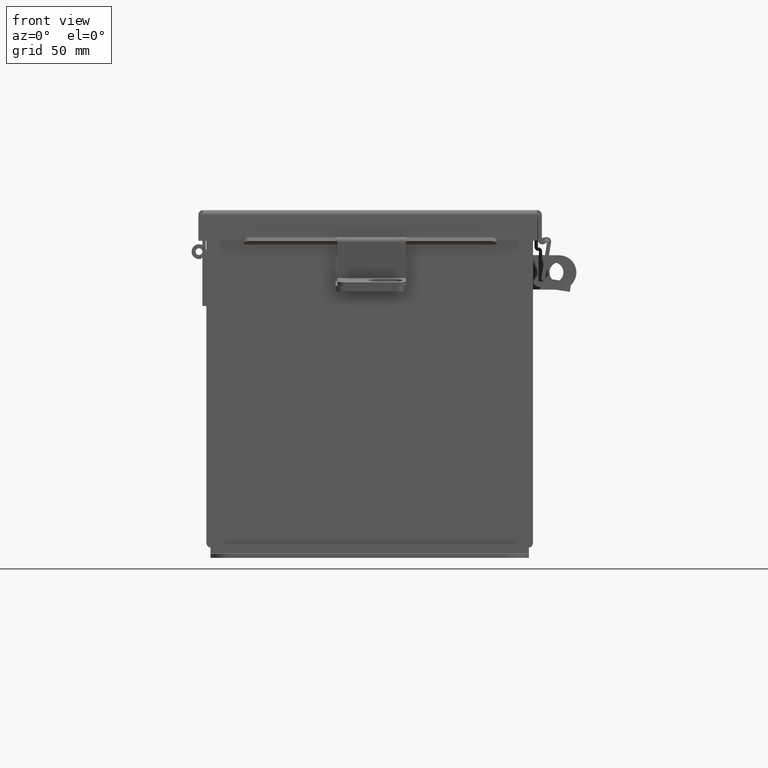
[diagram: clean part render]
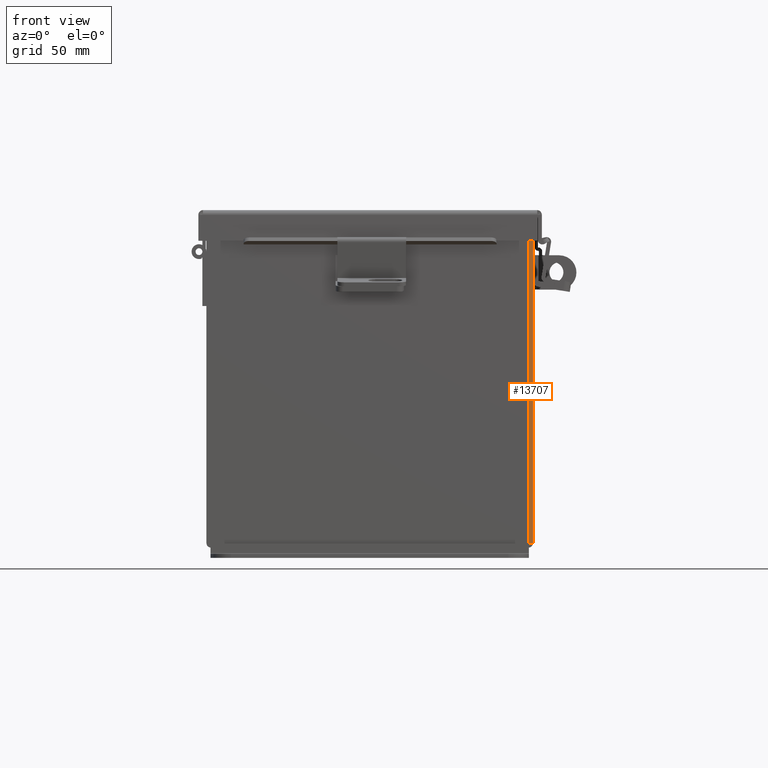
[diagram: same view with one face highlighted and labeled with its STEP entity id]
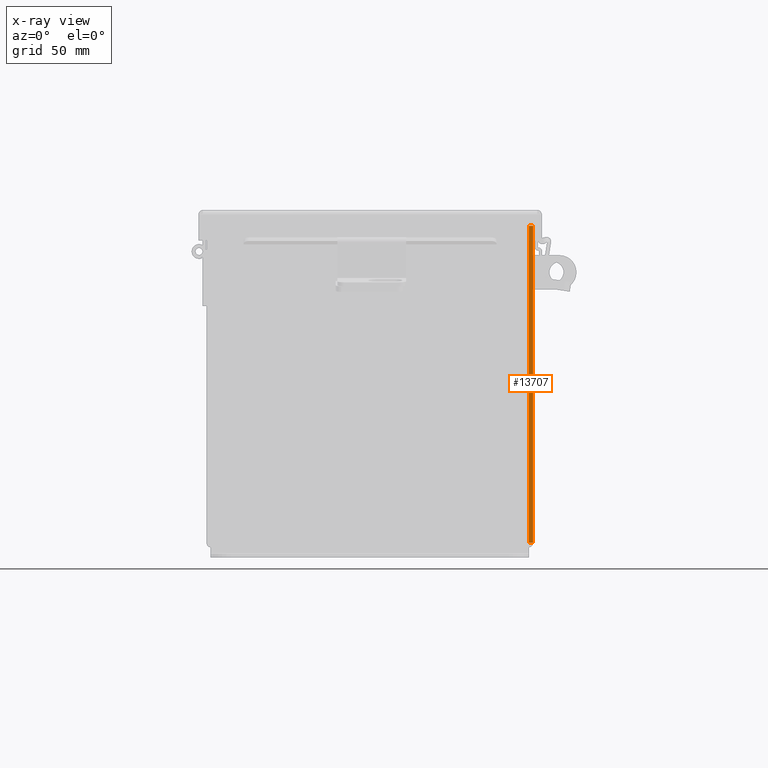
[diagram: x-ray of the same camera — body ghosted, the highlighted face saturated]
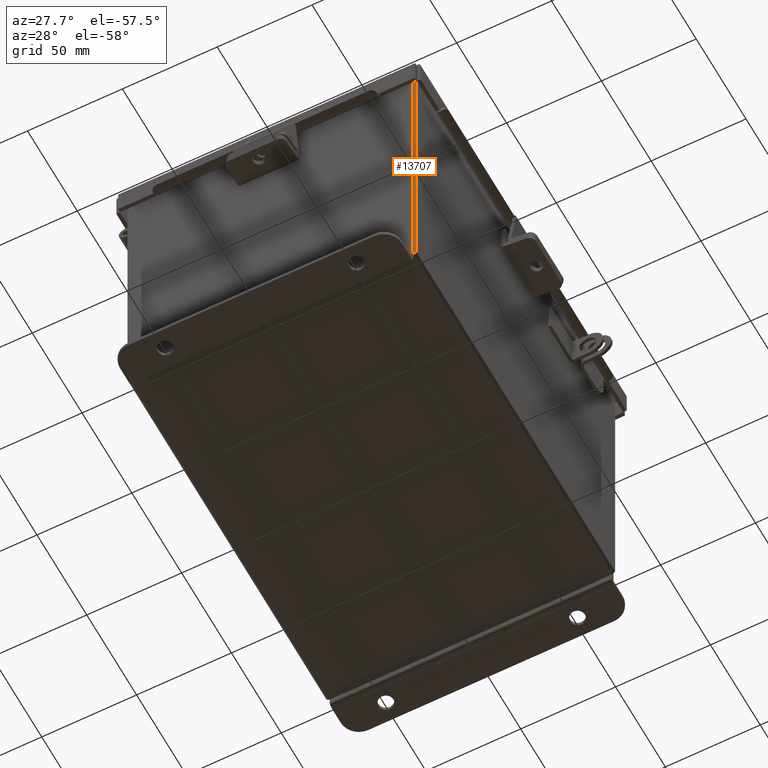
[diagram: same view with one face highlighted and labeled with its STEP entity id]
A machine part, front view. The second image highlights one B-rep face of the part: STEP entity #13707.
The next image is the same camera in x-ray: the body ghosted, the highlighted face saturated — about 0% of this face is hidden behind the body in this view.
A second angle (auxiliary view) of the same face is appended — the face is thin or edge-on in the first view.
In plain terms, the highlighted planar face has unit normal (0, 1, 0).
Its self-contained STEP definition (entity closure, byte-faithful):
#259 = VERTEX_POINT ( 'NONE', #8874 ) ;
#736 = CARTESIAN_POINT ( 'NONE',  ( 2.925300000000020900, -3.925299999999999100, 5.837599999999999200 ) ) ;
#1007 = LINE ( 'NONE', #1054, #13263 ) ;
#1054 = CARTESIAN_POINT ( 'NONE',  ( 3.000000000000000900, -3.925299999999999100, -1.062859610035002400E-014 ) ) ;
#1614 = CARTESIAN_POINT ( 'NONE',  ( 3.000000000000000900, -3.925299999999999100, -2.646477743862255200E-016 ) ) ;
#2313 = VERTEX_POINT ( 'NONE', #2800 ) ;
#2370 = VECTOR ( 'NONE', #7190, 39.37007874015748100 ) ;
#2557 = LINE ( 'NONE', #736, #2926 ) ;
#2608 = EDGE_CURVE ( 'NONE', #259, #9758, #15109, .T. ) ;
#2800 = CARTESIAN_POINT ( 'NONE',  ( 3.000000000000020900, -3.925299999999999100, 5.837599999999999200 ) ) ;
#2926 = VECTOR ( 'NONE', #9030, 39.37007874015748100 ) ;
#3389 = DIRECTION ( 'NONE',  ( -3.455316574900958600E-015, 0.0000000000000000000, -1.000000000000000000 ) ) ;
#3478 = EDGE_CURVE ( 'NONE', #2313, #7778, #1007, .T. ) ;
#3996 = PLANE ( 'NONE',  #11448 ) ;
#4935 = ORIENTED_EDGE ( 'NONE', *, *, #2608, .T. ) ;
#6877 = CARTESIAN_POINT ( 'NONE',  ( 2.925300000000000500, -3.925299999999999100, 0.0000000000000000000 ) ) ;
#7190 = DIRECTION ( 'NONE',  ( 1.000000000000000000, 0.0000000000000000000, -3.491481338843133000E-015 ) ) ;
#7567 = DIRECTION ( 'NONE',  ( 0.0000000000000000000, -0.0000000000000000000, 1.000000000000000000 ) ) ;
#7778 = VERTEX_POINT ( 'NONE', #12526 ) ;
#8173 = ORIENTED_EDGE ( 'NONE', *, *, #10144, .F. ) ;
#8874 = CARTESIAN_POINT ( 'NONE',  ( 2.925300000000020900, -3.925299999999999100, 5.837599999999999200 ) ) ;
#9030 = DIRECTION ( 'NONE',  ( 1.000000000000000000, 0.0000000000000000000, 0.0000000000000000000 ) ) ;
#9758 = VERTEX_POINT ( 'NONE', #13184 ) ;
#10144 = EDGE_CURVE ( 'NONE', #259, #2313, #2557, .T. ) ;
#10372 = EDGE_CURVE ( 'NONE', #9758, #7778, #12192, .T. ) ;
#10897 = ORIENTED_EDGE ( 'NONE', *, *, #10372, .T. ) ;
#11448 = AXIS2_PLACEMENT_3D ( 'NONE', #1614, #14666, #7567 ) ;
#11792 = VECTOR ( 'NONE', #14984, 39.37007874015748100 ) ;
#11824 = CARTESIAN_POINT ( 'NONE',  ( 3.000000000000000900, -3.925299999999999100, 0.01299999999999984300 ) ) ;
#12157 = FACE_OUTER_BOUND ( 'NONE', #15244, .T. ) ;
#12192 = LINE ( 'NONE', #11824, #2370 ) ;
#12526 = CARTESIAN_POINT ( 'NONE',  ( 3.000000000000000900, -3.925299999999999100, 0.01299999999999980900 ) ) ;
#13184 = CARTESIAN_POINT ( 'NONE',  ( 2.925300000000000500, -3.925299999999999100, 0.01300000000000006500 ) ) ;
#13263 = VECTOR ( 'NONE', #3389, 39.37007874015748100 ) ;
#13507 = ORIENTED_EDGE ( 'NONE', *, *, #3478, .F. ) ;
#13707 = ADVANCED_FACE ( 'NONE', ( #12157 ), #3996, .F. ) ;
#14666 = DIRECTION ( 'NONE',  ( -0.0000000000000000000, 1.000000000000000000, 0.0000000000000000000 ) ) ;
#14984 = DIRECTION ( 'NONE',  ( -3.455316574900958600E-015, -0.0000000000000000000, -1.000000000000000000 ) ) ;
#15109 = LINE ( 'NONE', #6877, #11792 ) ;
#15244 = EDGE_LOOP ( 'NONE', ( #8173, #4935, #10897, #13507 ) ) ;